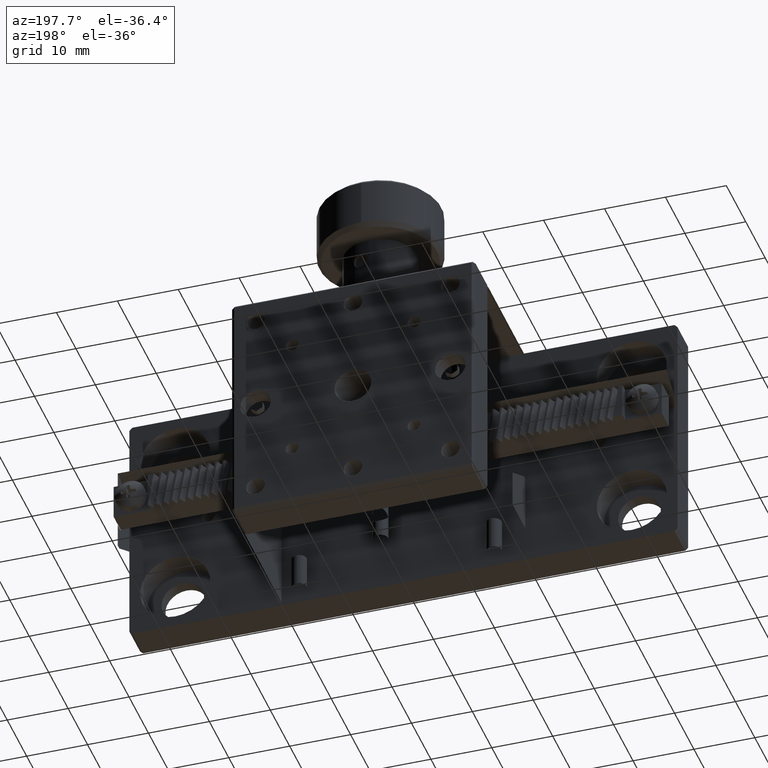
[diagram: clean part render]
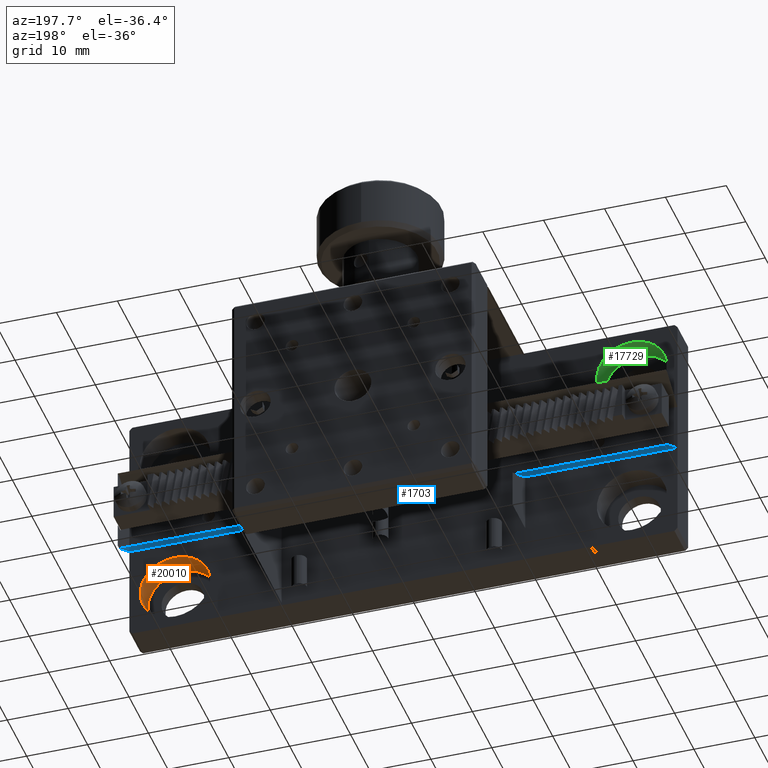
[diagram: same view with three faces highlighted in distinct colors, each labeled with its STEP entity id]
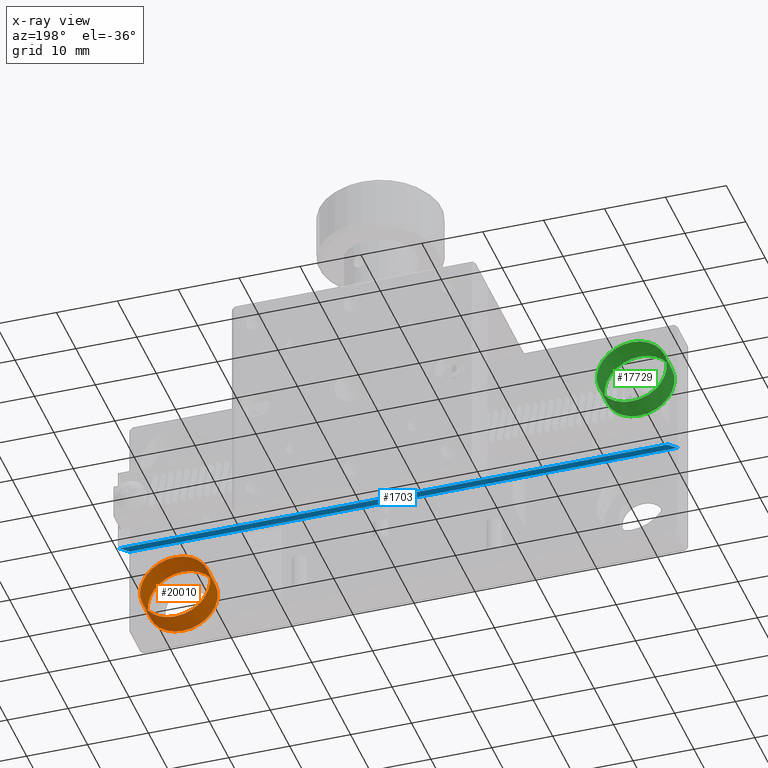
[diagram: x-ray of the same camera — body ghosted, the three highlighted faces saturated]
A machine part, auxiliary view with three faces highlighted in distinct colors.
The next image is the same camera in x-ray (body ghosted, the three faces saturated) — at least one of them is partly hidden behind the body in this view.
Their STEP definitions:

[orange] entity #20010 — the highlighted cylindrical surface (bore or boss wall) has radius 5.75 mm, axis along (0, 1, 0).
#1072 = EDGE_LOOP ( 'NONE', ( #11065 ) ) ;
#1990 = CARTESIAN_POINT ( 'NONE',  ( 58.11330177514791018, 13.55204733727810229, -12.50000000000000533 ) ) ;
#4846 = DIRECTION ( 'NONE',  ( 0.000000000000000000, 0.000000000000000000, 1.000000000000000000 ) ) ;
#5051 = DIRECTION ( 'NONE',  ( 0.000000000000000000, 1.000000000000000000, 0.000000000000000000 ) ) ;
#5391 = AXIS2_PLACEMENT_3D ( 'NONE', #8572, #5051, #4846 ) ;
#5653 = AXIS2_PLACEMENT_3D ( 'NONE', #19785, #9459, #11212 ) ;
#6514 = CARTESIAN_POINT ( 'NONE',  ( 58.11330177514791018, 13.55204733727810229, -6.750000000000010658 ) ) ;
#8572 = CARTESIAN_POINT ( 'NONE',  ( 58.11330177514791018, 9.552047337278102290, -12.50000000000000533 ) ) ;
#9459 = DIRECTION ( 'NONE',  ( 0.000000000000000000, 1.000000000000000000, 0.000000000000000000 ) ) ;
#9491 = VERTEX_POINT ( 'NONE', #9715 ) ;
#9715 = CARTESIAN_POINT ( 'NONE',  ( 58.11330177514791018, 9.552047337278102290, -6.750000000000010658 ) ) ;
#9812 = FACE_OUTER_BOUND ( 'NONE', #13641, .T. ) ;
#10489 = DIRECTION ( 'NONE',  ( 0.000000000000000000, 0.000000000000000000, 1.000000000000000000 ) ) ;
#11065 = ORIENTED_EDGE ( 'NONE', *, *, #15535, .F. ) ;
#11212 = DIRECTION ( 'NONE',  ( 0.000000000000000000, 0.000000000000000000, 1.000000000000000000 ) ) ;
#11778 = CYLINDRICAL_SURFACE ( 'NONE', #5391, 5.749999999999995559 ) ;
#12886 = ORIENTED_EDGE ( 'NONE', *, *, #19872, .T. ) ;
#13641 = EDGE_LOOP ( 'NONE', ( #12886 ) ) ;
#14881 = VERTEX_POINT ( 'NONE', #6514 ) ;
#15161 = CIRCLE ( 'NONE', #5653, 5.749999999999995559 ) ;
#15535 = EDGE_CURVE ( 'NONE', #9491, #9491, #15161, .T. ) ;
#15957 = CIRCLE ( 'NONE', #18052, 5.749999999999995559 ) ;
#18052 = AXIS2_PLACEMENT_3D ( 'NONE', #1990, #18939, #10489 ) ;
#18939 = DIRECTION ( 'NONE',  ( 0.000000000000000000, 1.000000000000000000, 0.000000000000000000 ) ) ;
#19785 = CARTESIAN_POINT ( 'NONE',  ( 58.11330177514791018, 9.552047337278102290, -12.50000000000000533 ) ) ;
#19872 = EDGE_CURVE ( 'NONE', #14881, #14881, #15957, .T. ) ;
#20010 = ADVANCED_FACE ( 'NONE', ( #9812, #21650 ), #11778, .F. ) ;
#21650 = FACE_OUTER_BOUND ( 'NONE', #1072, .T. ) ;

[blue] entity #1703 — the highlighted planar face has unit normal (-0, 0.5, 0.866).
#398 = ORIENTED_EDGE ( 'NONE', *, *, #18208, .T. ) ;
#1703 = ADVANCED_FACE ( 'NONE', ( #14212 ), #5839, .T. ) ;
#2814 = CARTESIAN_POINT ( 'NONE',  ( 65.61330177514791728, 13.55204733727808808, -4.000000000000008882 ) ) ;
#3026 = LINE ( 'NONE', #9528, #10751 ) ;
#3895 = DIRECTION ( 'NONE',  ( 0.000000000000000000, 0.8660254037844402619, -0.4999999999999972800 ) ) ;
#4019 = LINE ( 'NONE', #7102, #18466 ) ;
#4796 = CARTESIAN_POINT ( 'NONE',  ( -24.38669822485208272, 13.55204733727808453, -4.000000000000005329 ) ) ;
#4973 = LINE ( 'NONE', #18197, #14479 ) ;
#5349 = EDGE_LOOP ( 'NONE', ( #398, #16973, #18730, #9076 ) ) ;
#5839 = PLANE ( 'NONE',  #7138 ) ;
#5989 = DIRECTION ( 'NONE',  ( -1.000000000000000000, -0.000000000000000000, 0.000000000000000000 ) ) ;
#7102 = CARTESIAN_POINT ( 'NONE',  ( 65.61330177514791728, 13.55204733727808453, -4.000000000000005329 ) ) ;
#7138 = AXIS2_PLACEMENT_3D ( 'NONE', #12565, #14099, #16087 ) ;
#9076 = ORIENTED_EDGE ( 'NONE', *, *, #18405, .F. ) ;
#9528 = CARTESIAN_POINT ( 'NONE',  ( -24.38669822485208272, 13.55204733727808453, -4.000000000000025757 ) ) ;
#10157 = CARTESIAN_POINT ( 'NONE',  ( -24.38669822485208272, 13.55204733727808453, -4.000000000000021316 ) ) ;
#10751 = VECTOR ( 'NONE', #11177, 1000.000000000000227 ) ;
#11177 = DIRECTION ( 'NONE',  ( 0.000000000000000000, 0.8660254037844402619, -0.4999999999999972800 ) ) ;
#11354 = VERTEX_POINT ( 'NONE', #10157 ) ;
#12204 = EDGE_CURVE ( 'NONE', #16553, #15137, #4973, .T. ) ;
#12565 = CARTESIAN_POINT ( 'NONE',  ( -24.38669822485208272, 13.55204733727808453, -4.000000000000025757 ) ) ;
#13577 = CARTESIAN_POINT ( 'NONE',  ( 65.61330177514791728, 18.74819975998475741, -7.000000000000008882 ) ) ;
#14099 = DIRECTION ( 'NONE',  ( -1.922962686383566282E-16, 0.4999999999999976130, 0.8660254037844400399 ) ) ;
#14212 = FACE_OUTER_BOUND ( 'NONE', #5349, .T. ) ;
#14479 = VECTOR ( 'NONE', #16331, 1000.000000000000000 ) ;
#15137 = VERTEX_POINT ( 'NONE', #16089 ) ;
#16087 = DIRECTION ( 'NONE',  ( 0.000000000000000000, -0.8660254037844400399, 0.4999999999999976130 ) ) ;
#16089 = CARTESIAN_POINT ( 'NONE',  ( -24.38669822485207916, 18.74819975998475741, -7.000000000000026645 ) ) ;
#16238 = LINE ( 'NONE', #4796, #19882 ) ;
#16331 = DIRECTION ( 'NONE',  ( -1.000000000000000000, -9.614813431917785802E-17, -1.665334536937739494E-16 ) ) ;
#16553 = VERTEX_POINT ( 'NONE', #13577 ) ;
#16973 = ORIENTED_EDGE ( 'NONE', *, *, #12204, .T. ) ;
#17943 = VERTEX_POINT ( 'NONE', #2814 ) ;
#18197 = CARTESIAN_POINT ( 'NONE',  ( -24.38669822485208272, 18.74819975998475030, -7.000000000000025757 ) ) ;
#18208 = EDGE_CURVE ( 'NONE', #17943, #16553, #4019, .T. ) ;
#18357 = EDGE_CURVE ( 'NONE', #11354, #15137, #3026, .T. ) ;
#18405 = EDGE_CURVE ( 'NONE', #17943, #11354, #16238, .T. ) ;
#18466 = VECTOR ( 'NONE', #3895, 1000.000000000000227 ) ;
#18730 = ORIENTED_EDGE ( 'NONE', *, *, #18357, .F. ) ;
#19882 = VECTOR ( 'NONE', #5989, 1000.000000000000000 ) ;

[green] entity #17729 — the highlighted cylindrical surface (bore or boss wall) has radius 5.75 mm, axis along (0, 1, 0).
#874 = CIRCLE ( 'NONE', #13200, 5.749999999999994671 ) ;
#1892 = CARTESIAN_POINT ( 'NONE',  ( -16.88669822485207561, 9.552047337278102290, 18.25000000000000000 ) ) ;
#4639 = DIRECTION ( 'NONE',  ( 0.000000000000000000, 1.000000000000000000, 0.000000000000000000 ) ) ;
#5405 = VERTEX_POINT ( 'NONE', #1892 ) ;
#5990 = EDGE_CURVE ( 'NONE', #5405, #5405, #21300, .T. ) ;
#6037 = DIRECTION ( 'NONE',  ( 0.000000000000000000, 1.000000000000000000, 0.000000000000000000 ) ) ;
#6174 = CARTESIAN_POINT ( 'NONE',  ( -16.88669822485207561, 13.55204733727810229, 18.25000000000000000 ) ) ;
#6402 = FACE_OUTER_BOUND ( 'NONE', #20899, .T. ) ;
#6699 = ORIENTED_EDGE ( 'NONE', *, *, #17686, .T. ) ;
#6729 = CYLINDRICAL_SURFACE ( 'NONE', #18458, 5.749999999999994671 ) ;
#8484 = CARTESIAN_POINT ( 'NONE',  ( -16.88669822485207561, 9.552047337278102290, 12.50000000000000355 ) ) ;
#11845 = AXIS2_PLACEMENT_3D ( 'NONE', #21094, #6037, #16179 ) ;
#12903 = CARTESIAN_POINT ( 'NONE',  ( -16.88669822485207561, 13.55204733727810229, 12.50000000000000355 ) ) ;
#13200 = AXIS2_PLACEMENT_3D ( 'NONE', #12903, #21123, #19613 ) ;
#13748 = EDGE_LOOP ( 'NONE', ( #6699 ) ) ;
#15099 = FACE_OUTER_BOUND ( 'NONE', #13748, .T. ) ;
#16179 = DIRECTION ( 'NONE',  ( 0.000000000000000000, 0.000000000000000000, 1.000000000000000000 ) ) ;
#16533 = VERTEX_POINT ( 'NONE', #6174 ) ;
#17686 = EDGE_CURVE ( 'NONE', #16533, #16533, #874, .T. ) ;
#17729 = ADVANCED_FACE ( 'NONE', ( #15099, #6402 ), #6729, .F. ) ;
#18398 = DIRECTION ( 'NONE',  ( 0.000000000000000000, 0.000000000000000000, 1.000000000000000000 ) ) ;
#18458 = AXIS2_PLACEMENT_3D ( 'NONE', #8484, #4639, #18398 ) ;
#19613 = DIRECTION ( 'NONE',  ( 0.000000000000000000, 0.000000000000000000, 1.000000000000000000 ) ) ;
#20899 = EDGE_LOOP ( 'NONE', ( #21464 ) ) ;
#21094 = CARTESIAN_POINT ( 'NONE',  ( -16.88669822485207561, 9.552047337278102290, 12.50000000000000355 ) ) ;
#21123 = DIRECTION ( 'NONE',  ( 0.000000000000000000, 1.000000000000000000, 0.000000000000000000 ) ) ;
#21300 = CIRCLE ( 'NONE', #11845, 5.749999999999994671 ) ;
#21464 = ORIENTED_EDGE ( 'NONE', *, *, #5990, .F. ) ;